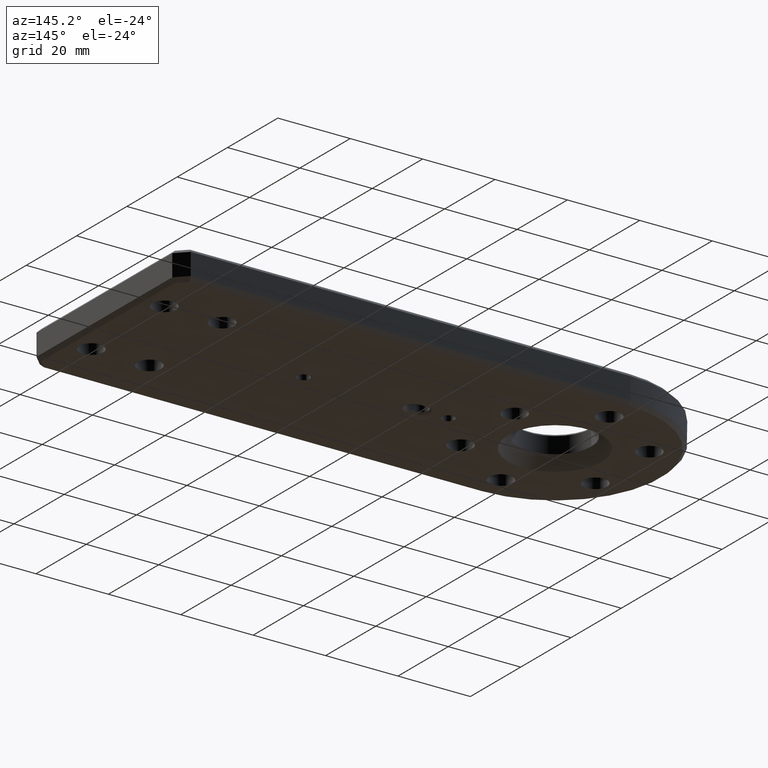
[diagram: clean part render]
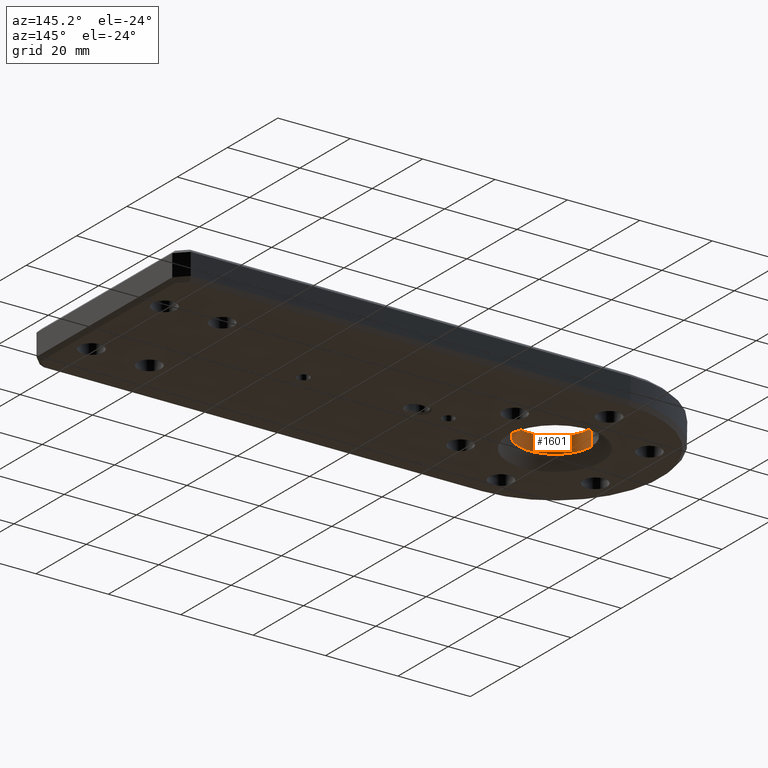
[diagram: same view with one face highlighted and labeled with its STEP entity id]
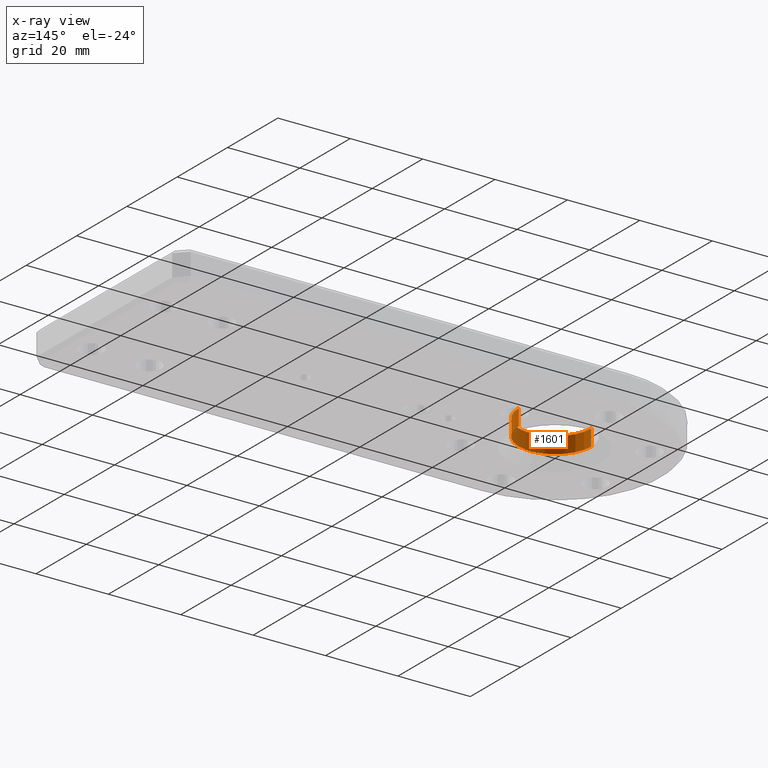
[diagram: x-ray of the same camera — body ghosted, the highlighted face saturated]
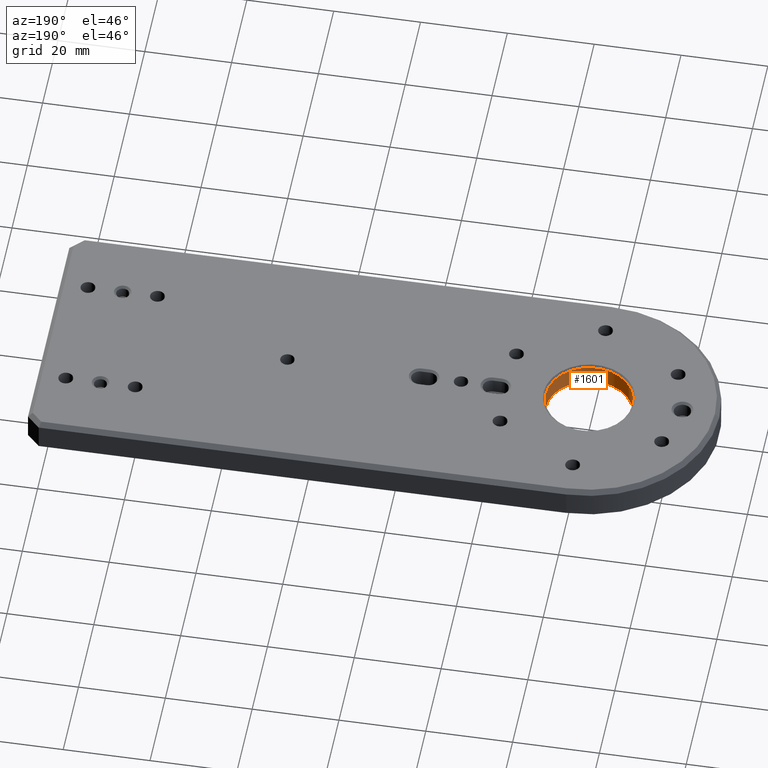
[diagram: same view with one face highlighted and labeled with its STEP entity id]
A machine part, auxiliary view. The second image highlights one B-rep face of the part: STEP entity #1601.
The next image is the same camera in x-ray: the body ghosted, the highlighted face saturated — about 1% of this face is hidden behind the body in this view.
A second angle (auxiliary view) of the same face is appended — the face is thin or edge-on in the first view.
In plain terms, the highlighted cylindrical surface (partial cylindrical patch) has radius 10 mm, axis along (-0, -0, 1).
Its self-contained STEP definition (entity closure, byte-faithful):
#110 = EDGE_CURVE ( 'NONE', #1005, #3124, #1766, .T. ) ;
#147 = EDGE_CURVE ( 'NONE', #1351, #3534, #954, .T. ) ;
#173 = FACE_OUTER_BOUND ( 'NONE', #1515, .T. ) ;
#204 = CARTESIAN_POINT ( 'NONE',  ( 10.00000000000000000, 0.0000000000000000000, -5.000000000000023093 ) ) ;
#492 = CARTESIAN_POINT ( 'NONE',  ( -10.00000000000000000, 1.224646799147353256E-15, -8.000000000000000000 ) ) ;
#665 = CYLINDRICAL_SURFACE ( 'NONE', #1569, 10.00000000000000000 ) ;
#721 = AXIS2_PLACEMENT_3D ( 'NONE', #1898, #797, #3010 ) ;
#781 = CARTESIAN_POINT ( 'NONE',  ( 0.0000000000000000000, 0.0000000000000000000, -5.000000000000023093 ) ) ;
#782 = CARTESIAN_POINT ( 'NONE',  ( -10.00000000000000000, 1.224646799147353256E-15, -0.5000000000000160982 ) ) ;
#797 = DIRECTION ( 'NONE',  ( 0.0000000000000000000, 0.0000000000000000000, 1.000000000000000000 ) ) ;
#819 = DIRECTION ( 'NONE',  ( 1.000000000000000000, 0.0000000000000000000, 0.0000000000000000000 ) ) ;
#948 = ORIENTED_EDGE ( 'NONE', *, *, #2637, .T. ) ;
#954 = CIRCLE ( 'NONE', #721, 10.00000000000000000 ) ;
#971 = LINE ( 'NONE', #2122, #1964 ) ;
#976 = DIRECTION ( 'NONE',  ( 1.000000000000000000, 0.0000000000000000000, 0.0000000000000000000 ) ) ;
#1005 = VERTEX_POINT ( 'NONE', #204 ) ;
#1067 = CARTESIAN_POINT ( 'NONE',  ( 10.00000000000000000, 0.0000000000000000000, -0.5000000000000160982 ) ) ;
#1351 = VERTEX_POINT ( 'NONE', #782 ) ;
#1364 = AXIS2_PLACEMENT_3D ( 'NONE', #781, #3062, #819 ) ;
#1368 = DIRECTION ( 'NONE',  ( -0.0000000000000000000, -0.0000000000000000000, 1.000000000000000000 ) ) ;
#1515 = EDGE_LOOP ( 'NONE', ( #1830, #948, #3342, #3159 ) ) ;
#1569 = AXIS2_PLACEMENT_3D ( 'NONE', #2953, #3243, #976 ) ;
#1601 = ADVANCED_FACE ( 'NONE', ( #173 ), #665, .F. ) ;
#1766 = CIRCLE ( 'NONE', #1364, 10.00000000000000000 ) ;
#1830 = ORIENTED_EDGE ( 'NONE', *, *, #110, .T. ) ;
#1863 = VECTOR ( 'NONE', #1368, 1000.000000000000000 ) ;
#1898 = CARTESIAN_POINT ( 'NONE',  ( 0.0000000000000000000, 0.0000000000000000000, -0.5000000000000160982 ) ) ;
#1964 = VECTOR ( 'NONE', #3240, 1000.000000000000000 ) ;
#2122 = CARTESIAN_POINT ( 'NONE',  ( 10.00000000000000000, 0.0000000000000000000, -8.000000000000000000 ) ) ;
#2155 = LINE ( 'NONE', #492, #1863 ) ;
#2430 = CARTESIAN_POINT ( 'NONE',  ( -10.00000000000000000, 1.224646799147353256E-15, -5.000000000000023093 ) ) ;
#2637 = EDGE_CURVE ( 'NONE', #3124, #1351, #2155, .T. ) ;
#2953 = CARTESIAN_POINT ( 'NONE',  ( 0.0000000000000000000, 0.0000000000000000000, -8.000000000000000000 ) ) ;
#3010 = DIRECTION ( 'NONE',  ( 1.000000000000000000, 0.0000000000000000000, 0.0000000000000000000 ) ) ;
#3062 = DIRECTION ( 'NONE',  ( -0.0000000000000000000, -0.0000000000000000000, -1.000000000000000000 ) ) ;
#3124 = VERTEX_POINT ( 'NONE', #2430 ) ;
#3159 = ORIENTED_EDGE ( 'NONE', *, *, #3440, .F. ) ;
#3240 = DIRECTION ( 'NONE',  ( -0.0000000000000000000, -0.0000000000000000000, 1.000000000000000000 ) ) ;
#3243 = DIRECTION ( 'NONE',  ( -0.0000000000000000000, -0.0000000000000000000, 1.000000000000000000 ) ) ;
#3342 = ORIENTED_EDGE ( 'NONE', *, *, #147, .T. ) ;
#3440 = EDGE_CURVE ( 'NONE', #1005, #3534, #971, .T. ) ;
#3534 = VERTEX_POINT ( 'NONE', #1067 ) ;